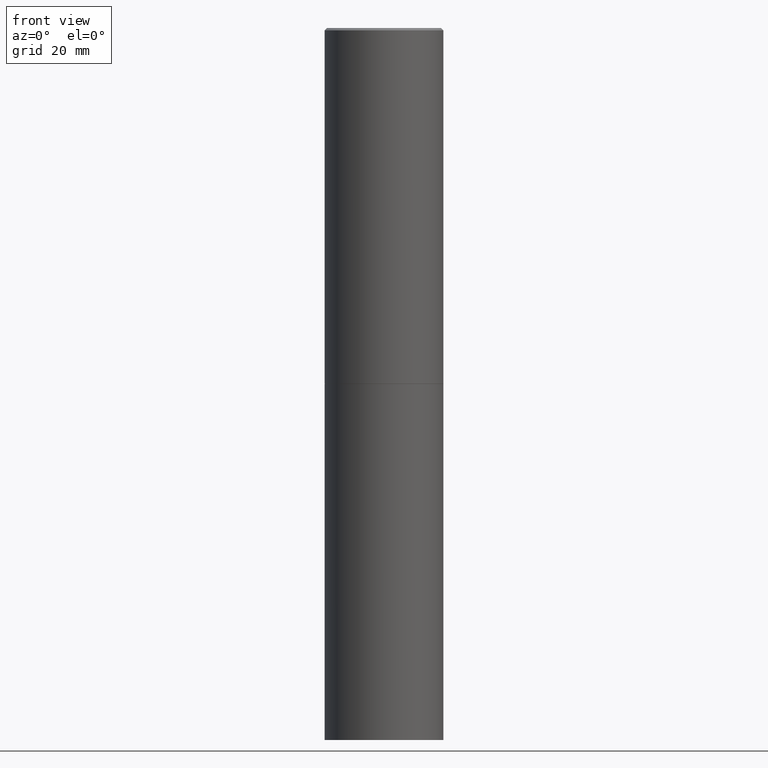
[diagram: clean part render]
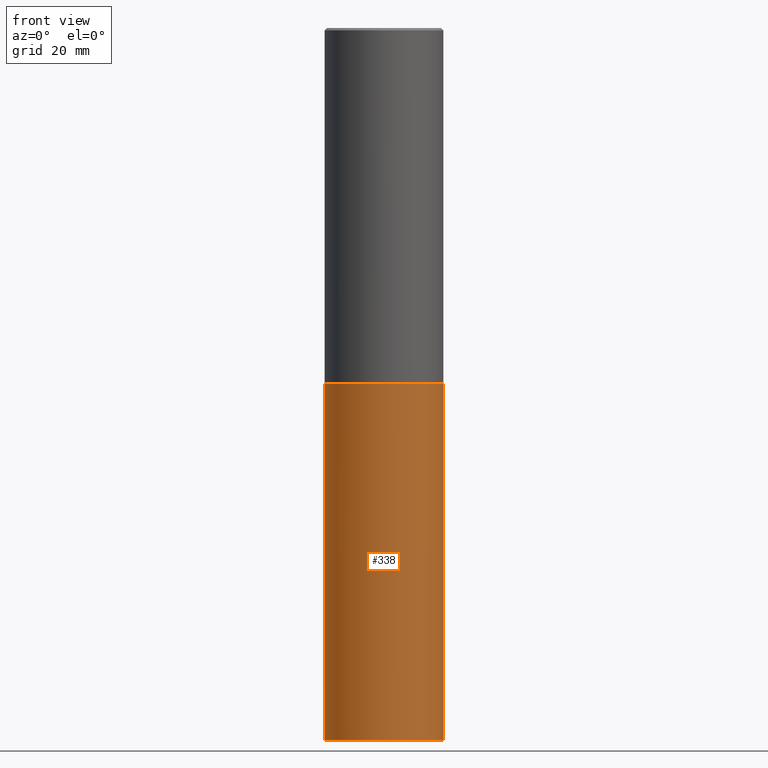
[diagram: same view with one face highlighted and labeled with its STEP entity id]
A machine part, front view. The second image highlights one B-rep face of the part: STEP entity #338.
In plain terms, the highlighted cylindrical surface (partial cylindrical patch) has radius 12.5006 mm, axis along (-0, 0, 1).
Its self-contained STEP definition (entity closure, byte-faithful):
#5 = CARTESIAN_POINT ( 'NONE',  ( -0.4921499999999999764, 3.496936074043332897E-15, -2.420853904668951509E-29 ) ) ;
#32 = VECTOR ( 'NONE', #271, 39.37007874015748143 ) ;
#37 = EDGE_CURVE ( 'NONE', #227, #281, #140, .T. ) ;
#43 = CARTESIAN_POINT ( 'NONE',  ( -0.4921499999999999764, -1.196718392382684217E-14, -5.905499999999999972 ) ) ;
#51 = CYLINDRICAL_SURFACE ( 'NONE', #357, 0.4921499999999999764 ) ;
#68 = DIRECTION ( 'NONE',  ( -2.445468806185136597E-29, 3.491481338843145583E-15, 1.000000000000000000 ) ) ;
#73 = CARTESIAN_POINT ( 'NONE',  ( 1.444171603492632270E-28, -2.061894304653819197E-14, -5.905499999999999972 ) ) ;
#76 = CARTESIAN_POINT ( 'NONE',  ( 0.4921499999999999764, -2.405560812836148932E-14, -5.905499999999999972 ) ) ;
#97 = DIRECTION ( 'NONE',  ( 1.000000000000000000, -6.982962677686265922E-15, 0.000000000000000000 ) ) ;
#106 = EDGE_CURVE ( 'NONE', #288, #227, #198, .T. ) ;
#113 = CIRCLE ( 'NONE', #237, 0.4921499999999999764 ) ;
#117 = EDGE_LOOP ( 'NONE', ( #285, #204, #287, #306 ) ) ;
#118 = DIRECTION ( 'NONE',  ( -2.445468806185136877E-29, 3.491481338843145188E-15, 1.000000000000000000 ) ) ;
#140 = CIRCLE ( 'NONE', #183, 0.4921499999999999764 ) ;
#149 = CARTESIAN_POINT ( 'NONE',  ( 0.4921499999999999764, -3.436665081823295777E-15, 2.399810400207969603E-29 ) ) ;
#171 = LINE ( 'NONE', #149, #32 ) ;
#174 = DIRECTION ( 'NONE',  ( 1.000000000000000000, -6.982962677686265922E-15, 0.000000000000000000 ) ) ;
#183 = AXIS2_PLACEMENT_3D ( 'NONE', #238, #351, #97 ) ;
#198 = LINE ( 'NONE', #5, #290 ) ;
#204 = ORIENTED_EDGE ( 'NONE', *, *, #252, .T. ) ;
#227 = VERTEX_POINT ( 'NONE', #247 ) ;
#237 = AXIS2_PLACEMENT_3D ( 'NONE', #73, #68, #174 ) ;
#238 = CARTESIAN_POINT ( 'NONE',  ( 7.220735744022852519E-29, -1.030929694920215502E-14, -2.952700000000000102 ) ) ;
#247 = CARTESIAN_POINT ( 'NONE',  ( -0.4921499999999999764, -1.196718392382684217E-14, -2.952700000000000102 ) ) ;
#251 = DIRECTION ( 'NONE',  ( 1.000000000000000000, -6.982962677686265922E-15, 4.876176775795935793E-29 ) ) ;
#252 = EDGE_CURVE ( 'NONE', #288, #257, #113, .T. ) ;
#257 = VERTEX_POINT ( 'NONE', #76 ) ;
#271 = DIRECTION ( 'NONE',  ( -2.445468806185136877E-29, 3.491481338843145188E-15, 1.000000000000000000 ) ) ;
#278 = EDGE_CURVE ( 'NONE', #257, #281, #171, .T. ) ;
#280 = FACE_OUTER_BOUND ( 'NONE', #117, .T. ) ;
#281 = VERTEX_POINT ( 'NONE', #298 ) ;
#285 = ORIENTED_EDGE ( 'NONE', *, *, #106, .F. ) ;
#287 = ORIENTED_EDGE ( 'NONE', *, *, #278, .T. ) ;
#288 = VERTEX_POINT ( 'NONE', #43 ) ;
#290 = VECTOR ( 'NONE', #118, 39.37007874015748143 ) ;
#298 = CARTESIAN_POINT ( 'NONE',  ( 0.4921499999999999764, -1.374596203102545079E-14, -2.952700000000000102 ) ) ;
#305 = DIRECTION ( 'NONE',  ( -2.445468806185136597E-29, 3.491481338843145583E-15, 1.000000000000000000 ) ) ;
#306 = ORIENTED_EDGE ( 'NONE', *, *, #37, .F. ) ;
#338 = ADVANCED_FACE ( 'NONE', ( #280 ), #51, .T. ) ;
#351 = DIRECTION ( 'NONE',  ( -2.445468806185136597E-29, 3.491481338843145583E-15, 1.000000000000000000 ) ) ;
#357 = AXIS2_PLACEMENT_3D ( 'NONE', #365, #305, #251 ) ;
#365 = CARTESIAN_POINT ( 'NONE',  ( 0.000000000000000000, 0.000000000000000000, 0.000000000000000000 ) ) ;